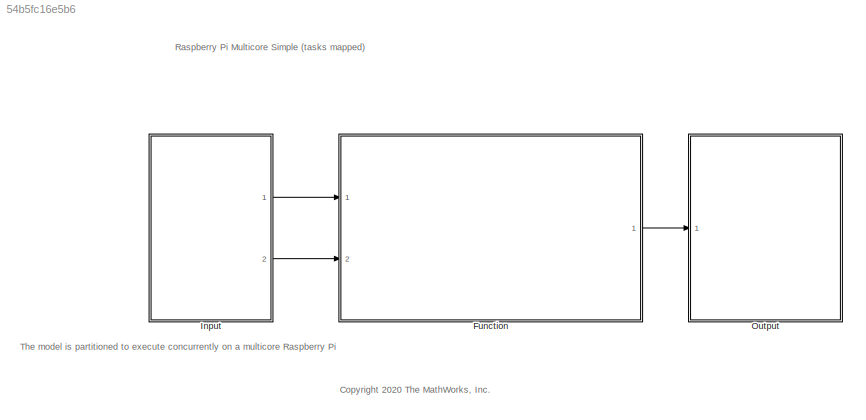
MODEL slx_54b5fc16e5b6
KIND model
CONFIG AbsTol = auto
CONFIG EnableMultiTasking = on
CONFIG FixedStep = auto
CONFIG MaxStep = auto
CONFIG MinStep = auto
CONFIG RelTol = 1e-3
CONFIG SampleTimeConstraint = Unconstrained
CONFIG SolverName = FixedStepAuto
CONFIG StartTime = 0.0
CONFIG StopTime = 10.0
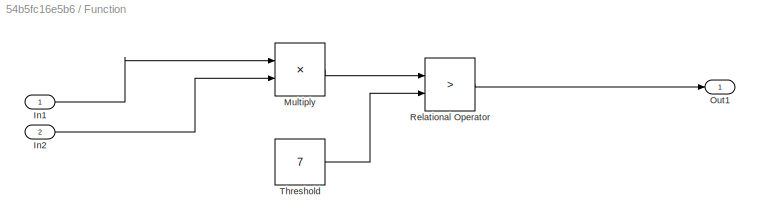
BLOCK [SubSystem] Function
  Ports = [2, 1]
  RequestExecContextInheritance = off
  TreatAsAtomicUnit = on
BLOCK [Inport] Function/In1
BLOCK [Inport] Function/In2
  Port = 2
BLOCK [Product] Function/Multiply
  Inputs = **
  Ports = [2, 1]
BLOCK [Outport] Function/Out1
BLOCK [RelationalOperator] Function/Relational Operator
  InputSameDT = off
  Operator = >
  OutDataTypeStr = boolean
  Ports = [2, 1]
BLOCK [Constant] Function/Threshold 
  OutDataTypeStr = uint8
  SampleTime = -1
  Value = 7
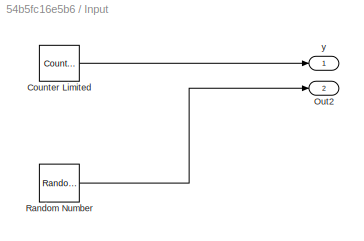
BLOCK [SubSystem] Input
  Ports = [0, 2]
  RequestExecContextInheritance = off
  TreatAsAtomicUnit = on
BLOCK [Reference] Input/Counter Limited  REF=simulink/Sources/Counter
Limited
  Ports = [0, 1]
  SourceBlock = simulink/Sources/Counter\nLimited
  SourceProductBaseCode = SL
  SourceType = Counter Limited
BLOCK [Outport] Input/Out2
  Port = 2
BLOCK [RandomNumber] Input/Random Number
BLOCK [Outport] Input/y
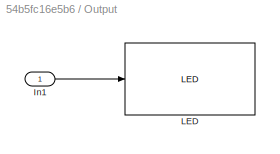
BLOCK [SubSystem] Output
  Ports = [1]
  RequestExecContextInheritance = off
  TreatAsAtomicUnit = on
BLOCK [Inport] Output/In1
BLOCK [Reference] Output/LED  REF=raspberrypiBasiclib/LED
  Ports = [1]
  SourceBlock = raspberrypiBasiclib/LED
  SourceProductBaseCode = RASPPI
  SourceType = codertarget.raspi.internal.LEDBlock
ANNOTATION (root): The model is partitioned to execute concurrently on a multicore Raspberry Pi
ANNOTATION (root): <copyright redacted>
ANNOTATION (root): Raspberry Pi Multicore Simple (tasks mapped)
LINE Function/In1:1 -> Function/Multiply:1
LINE Function/In2:1 -> Function/Multiply:2
LINE Function/Multiply:1 -> Function/Relational Operator:1
LINE Function/Relational Operator:1 -> Function/Out1:1
LINE Function/Threshold :1 -> Function/Relational Operator:2
LINE Function:1 -> Output:1
LINE Input/Counter Limited:1 -> Input/y:1
LINE Input/Random Number:1 -> Input/Out2:1
LINE Input:1 -> Function:1
LINE Input:2 -> Function:2
LINE Output/In1:1 -> Output/LED:1
